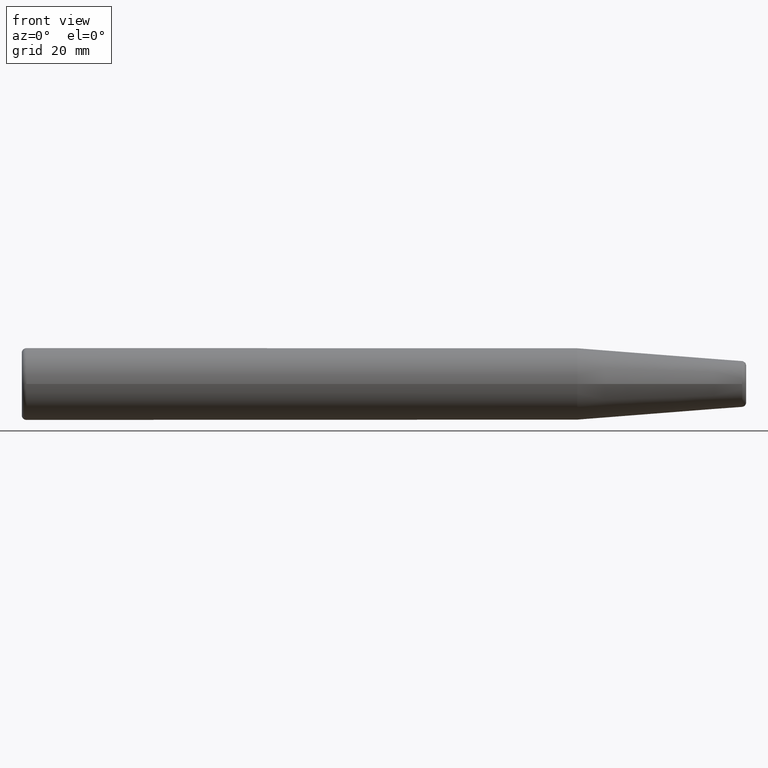
[diagram: clean part render]
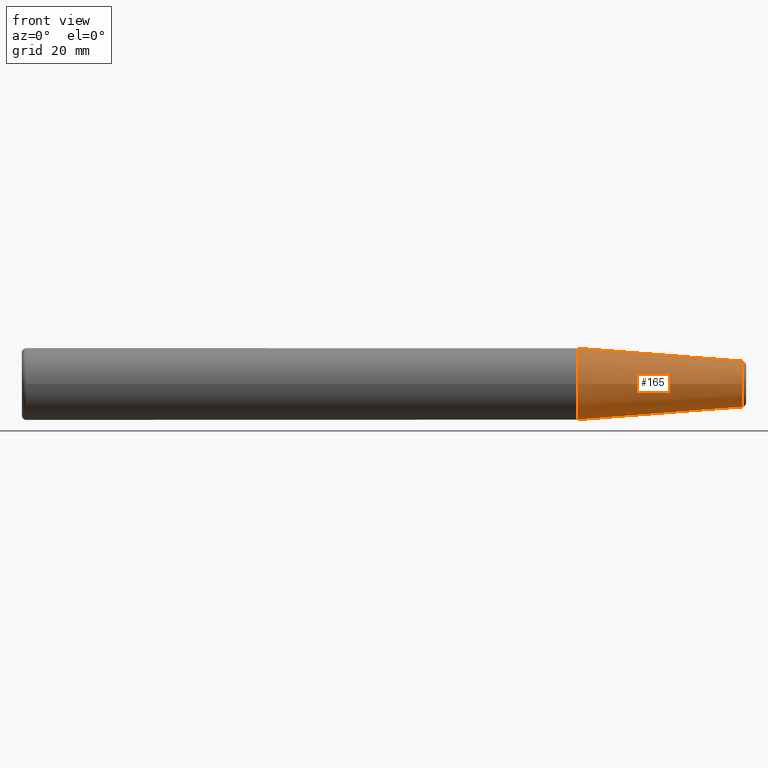
[diagram: same view with one face highlighted and labeled with its STEP entity id]
A machine part, front view. The second image highlights one B-rep face of the part: STEP entity #165.
In plain terms, the highlighted conical surface has half-angle 4.5 deg.
Its self-contained STEP definition (entity closure, byte-faithful):
#16=CONICAL_SURFACE('',#215,6.46875,0.0785398163397451);
#25=LINE('',#323,#30);
#30=VECTOR('',#276,6.46875);
#43=FACE_OUTER_BOUND('',#55,.T.);
#55=EDGE_LOOP('',(#148,#149,#150,#151,#152));
#69=CIRCLE('',#209,7.9375);
#70=CIRCLE('',#212,5.07252684207492);
#71=CIRCLE('',#213,5.07252684207492);
#84=VERTEX_POINT('',#312);
#85=VERTEX_POINT('',#317);
#86=VERTEX_POINT('',#318);
#104=EDGE_CURVE('',#84,#84,#69,.T.);
#105=EDGE_CURVE('',#85,#86,#70,.T.);
#106=EDGE_CURVE('',#86,#85,#71,.T.);
#108=EDGE_CURVE('',#84,#86,#25,.T.);
#148=ORIENTED_EDGE('',*,*,#104,.F.);
#149=ORIENTED_EDGE('',*,*,#108,.T.);
#150=ORIENTED_EDGE('',*,*,#105,.F.);
#151=ORIENTED_EDGE('',*,*,#106,.F.);
#152=ORIENTED_EDGE('',*,*,#108,.F.);
#165=ADVANCED_FACE('',(#43),#16,.T.);
#209=AXIS2_PLACEMENT_3D('',#314,#262,#263);
#212=AXIS2_PLACEMENT_3D('',#319,#268,#269);
#213=AXIS2_PLACEMENT_3D('',#320,#270,#271);
#215=AXIS2_PLACEMENT_3D('',#322,#274,#275);
#262=DIRECTION('center_axis',(-1.,0.,0.));
#263=DIRECTION('ref_axis',(0.,0.,1.));
#268=DIRECTION('center_axis',(1.,0.,0.));
#269=DIRECTION('ref_axis',(0.,-1.,-3.06161699786838E-17));
#270=DIRECTION('center_axis',(1.,0.,0.));
#271=DIRECTION('ref_axis',(0.,-1.,-3.06161699786838E-17));
#274=DIRECTION('center_axis',(-1.,0.,0.));
#275=DIRECTION('ref_axis',(0.,1.,0.));
#276=DIRECTION('',(0.996917333733128,0.0784590957278453,-9.60846804471015E-18));
#312=CARTESIAN_POINT('',(-37.3244764125131,-7.93749999999999,9.7206339682321E-16));
#314=CARTESIAN_POINT('Origin',(-37.3244764125131,0.,0.));
#317=CARTESIAN_POINT('',(-0.921540904272156,-6.21205376073608E-16,-5.07252684207492));
#318=CARTESIAN_POINT('',(-0.921540904272156,-5.07252684207492,6.21205376073608E-16));
#319=CARTESIAN_POINT('Origin',(-0.921540904272156,0.,7.76506720092011E-16));
#320=CARTESIAN_POINT('Origin',(-0.921540904272156,0.,7.76506720092011E-16));
#322=CARTESIAN_POINT('Origin',(-18.6622382062565,0.,0.));
#323=CARTESIAN_POINT('',(-18.6622382062565,-6.46875,7.92193398198444E-16));